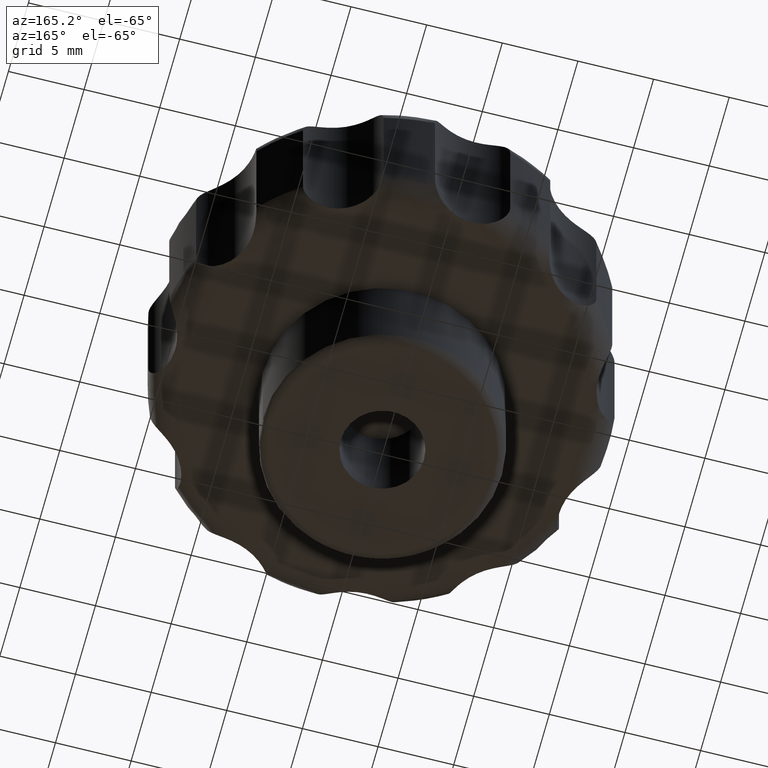
[diagram: clean part render]
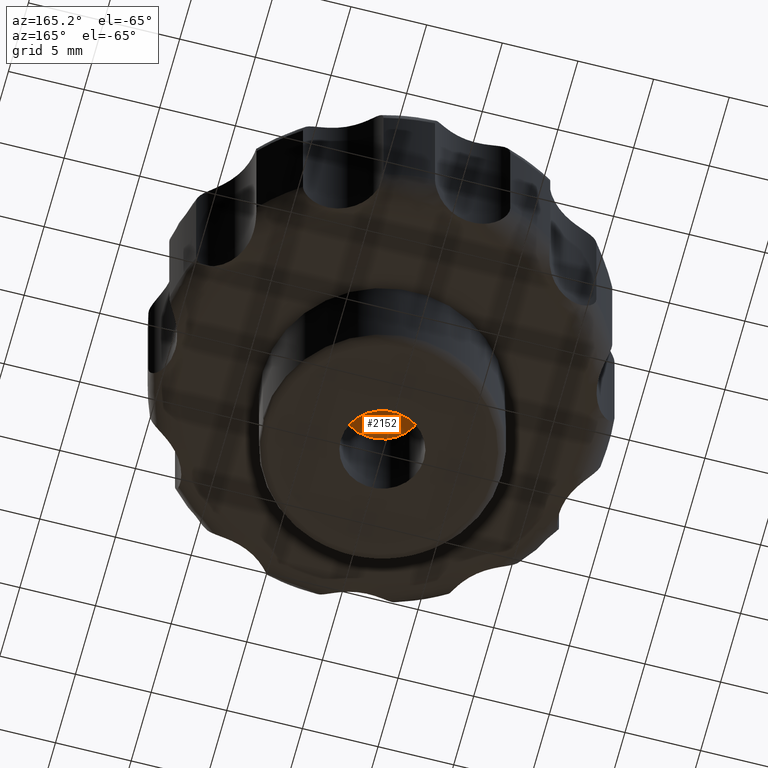
[diagram: same view with one face highlighted and labeled with its STEP entity id]
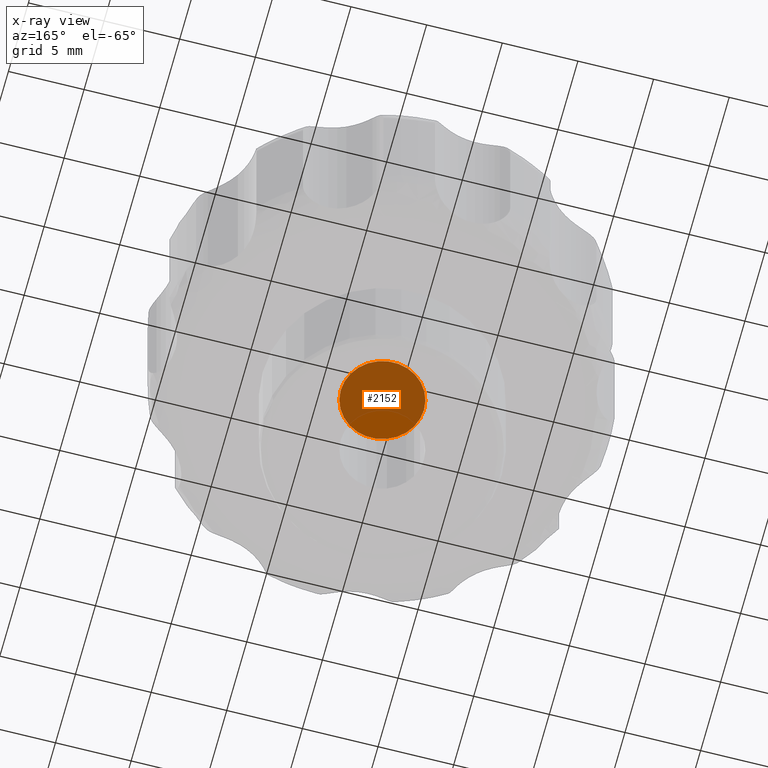
[diagram: x-ray of the same camera — body ghosted, the highlighted face saturated]
A machine part, auxiliary view. The second image highlights one B-rep face of the part: STEP entity #2152.
The next image is the same camera in x-ray: the body ghosted, the highlighted face saturated — about 75% of this face is hidden behind the body in this view.
In plain terms, the highlighted planar face has unit normal (0, 0, -1).
Its self-contained STEP definition (entity closure, byte-faithful):
#2113=CARTESIAN_POINT('',(-2.750000000000000,0.0,0.0));
#2114=VERTEX_POINT('',#2113);
#2115=CARTESIAN_POINT('',(2.750000000000000,0.0,0.0));
#2116=VERTEX_POINT('',#2115);
#2117=CARTESIAN_POINT('',(0.0,0.0,0.0));
#2118=DIRECTION('',(0.0,0.0,-1.0));
#2119=DIRECTION('',(1.0,0.0,0.0));
#2120=AXIS2_PLACEMENT_3D('',#2117,#2118,#2119);
#2121=CIRCLE('',#2120,2.750000000000000);
#2122=EDGE_CURVE('',#2114,#2116,#2121,.T.);
#2124=CARTESIAN_POINT('',(0.0,0.0,0.0));
#2125=DIRECTION('',(0.0,0.0,-1.0));
#2126=DIRECTION('',(1.0,0.0,0.0));
#2127=AXIS2_PLACEMENT_3D('',#2124,#2125,#2126);
#2128=CIRCLE('',#2127,2.750000000000000);
#2129=EDGE_CURVE('',#2116,#2114,#2128,.T.);
#2143=CARTESIAN_POINT('',(3.300058681902428,3.300058681909142,0.0));
#2144=DIRECTION('',(0.0,0.0,-1.0));
#2145=DIRECTION('',(0.0,-1.0,0.0));
#2146=AXIS2_PLACEMENT_3D('',#2143,#2144,#2145);
#2147=PLANE('',#2146);
#2148=ORIENTED_EDGE('',*,*,#2129,.T.);
#2149=ORIENTED_EDGE('',*,*,#2122,.T.);
#2150=EDGE_LOOP('',(#2148,#2149));
#2151=FACE_OUTER_BOUND('',#2150,.T.);
#2152=ADVANCED_FACE('',(#2151),#2147,.T.);